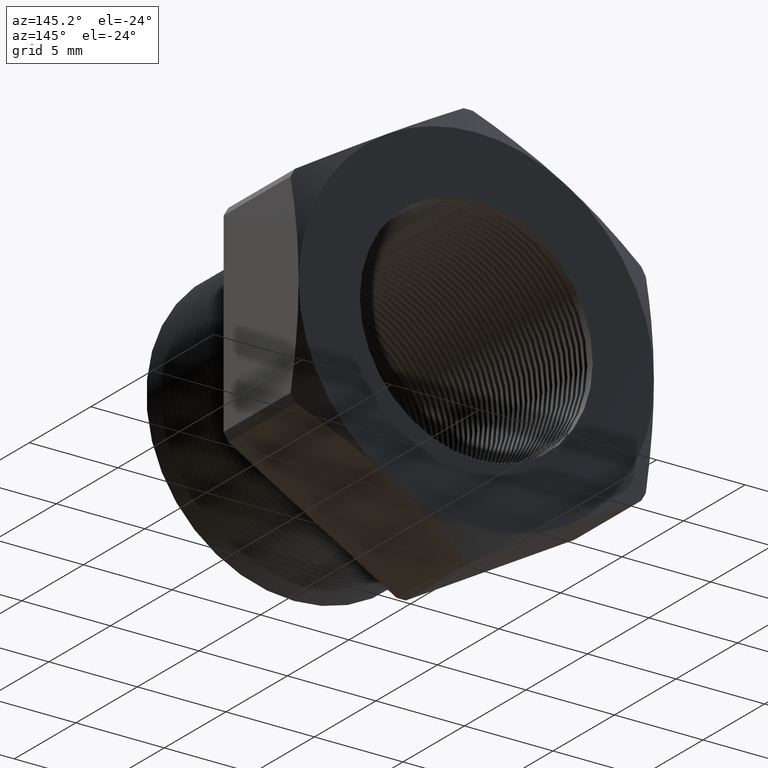
[diagram: clean part render]
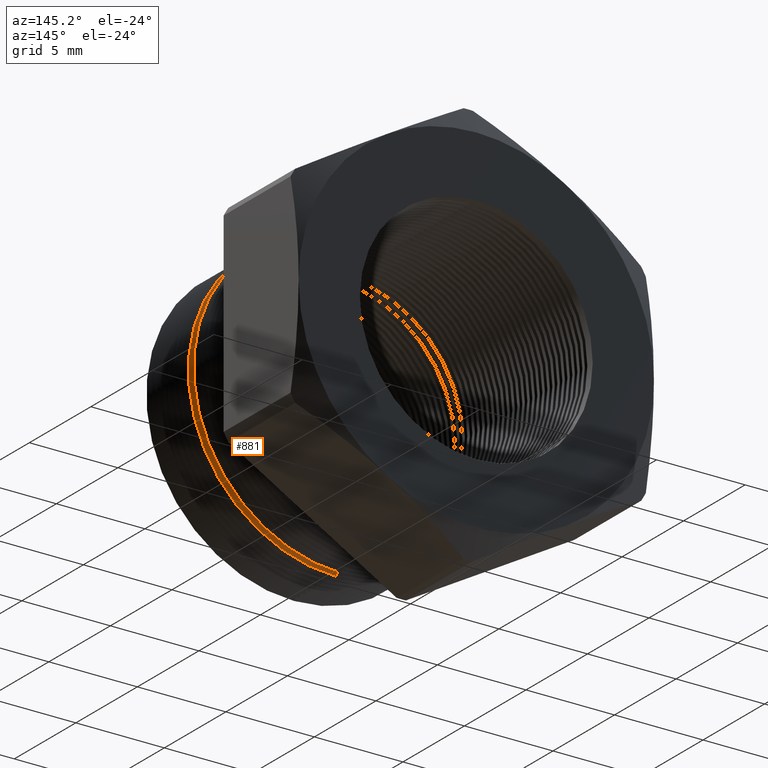
[diagram: same view with one face highlighted and labeled with its STEP entity id]
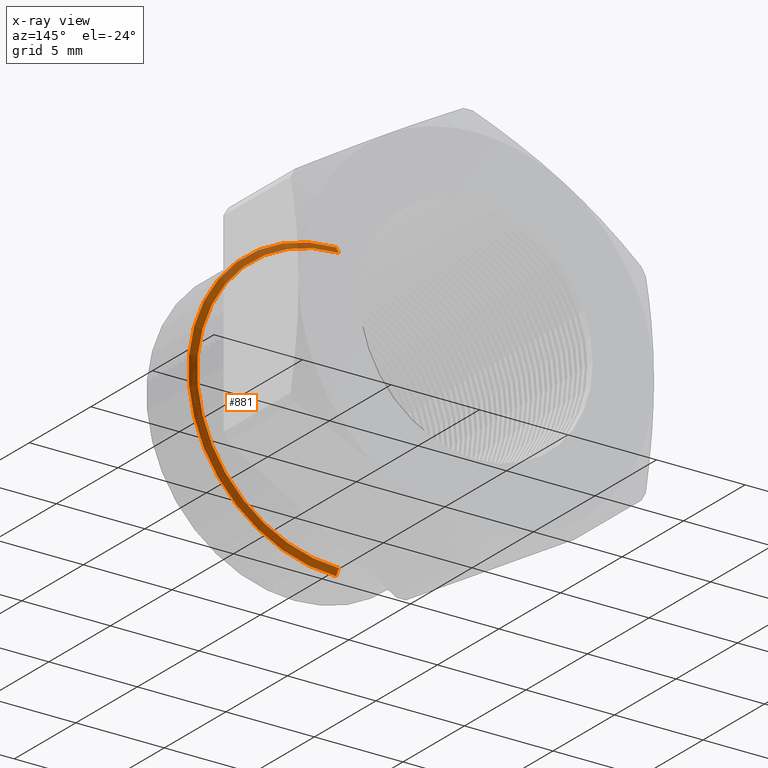
[diagram: x-ray of the same camera — body ghosted, the highlighted face saturated]
A machine part, auxiliary view. The second image highlights one B-rep face of the part: STEP entity #881.
The next image is the same camera in x-ray: the body ghosted, the highlighted face saturated — about 21% of this face is hidden behind the body in this view.
In plain terms, the highlighted conical surface has half-angle 60 deg.
Its self-contained STEP definition (entity closure, byte-faithful):
#799 = EDGE_LOOP ( 'NONE', ( #800, #804, #860, #861 ) ) ;
#800 = ORIENTED_EDGE ( 'NONE', *, *, #801, .T. ) ;
#801 = EDGE_CURVE ( 'NONE', #802, #803, #3259, .T. ) ;
#802 = VERTEX_POINT ( 'NONE', #3254 ) ;
#803 = VERTEX_POINT ( 'NONE', #3253 ) ;
#804 = ORIENTED_EDGE ( 'NONE', *, *, #805, .T. ) ;
#805 = EDGE_CURVE ( 'NONE', #803, #878, #3314, .T. ) ;
#818 = VERTEX_POINT ( 'NONE', #3288 ) ;
#860 = ORIENTED_EDGE ( 'NONE', *, *, #877, .T. ) ;
#861 = ORIENTED_EDGE ( 'NONE', *, *, #862, .F. ) ;
#862 = EDGE_CURVE ( 'NONE', #802, #818, #3385, .T. ) ;
#877 = EDGE_CURVE ( 'NONE', #878, #818, #3415, .T. ) ;
#878 = VERTEX_POINT ( 'NONE', #3410 ) ;
#881 = ADVANCED_FACE ( 'NONE', ( #3466 ), #3464, .T. ) ;
#3253 = CARTESIAN_POINT ( 'NONE',  ( 3.857637417314162700E-017, -0.03249275518999108400, 0.3150000000000000000 ) ) ;
#3254 = CARTESIAN_POINT ( 'NONE',  ( 0.0000000000000000000, -0.03249275518999108400, -0.3150000000000000000 ) ) ;
#3255 = DIRECTION ( 'NONE',  ( 0.0000000000000000000, 0.0000000000000000000, -1.000000000000000000 ) ) ;
#3256 = DIRECTION ( 'NONE',  ( 0.0000000000000000000, -1.000000000000000000, 0.0000000000000000000 ) ) ;
#3257 = CARTESIAN_POINT ( 'NONE',  ( 0.0000000000000000000, -0.03249275518999108400, 0.0000000000000000000 ) ) ;
#3258 = AXIS2_PLACEMENT_3D ( 'NONE', #3257, #3256, #3255 ) ;
#3259 = CIRCLE ( 'NONE', #3258, 0.3150000000000000000 ) ;
#3288 = CARTESIAN_POINT ( 'NONE',  ( 0.0000000000000000000, -0.04044510941705203200, -0.3287738815610546400 ) ) ;
#3311 = DIRECTION ( 'NONE',  ( 1.060575238724906300E-016, -0.5000000000000008900, 0.8660254037844380400 ) ) ;
#3312 = VECTOR ( 'NONE', #3311, 39.37007874015748100 ) ;
#3313 = CARTESIAN_POINT ( 'NONE',  ( 3.857637417314162700E-017, -0.03249275518999108400, 0.3150000000000000000 ) ) ;
#3314 = LINE ( 'NONE', #3313, #3312 ) ;
#3382 = DIRECTION ( 'NONE',  ( 0.0000000000000000000, -0.5000000000000008900, -0.8660254037844380400 ) ) ;
#3383 = VECTOR ( 'NONE', #3382, 39.37007874015748100 ) ;
#3384 = CARTESIAN_POINT ( 'NONE',  ( 0.0000000000000000000, -0.03249275518999108400, -0.3150000000000000000 ) ) ;
#3385 = LINE ( 'NONE', #3384, #3383 ) ;
#3410 = CARTESIAN_POINT ( 'NONE',  ( 4.026318816969966200E-017, -0.04044510941705203200, 0.3287738815610546400 ) ) ;
#3411 = DIRECTION ( 'NONE',  ( 0.0000000000000000000, 0.0000000000000000000, 1.000000000000000000 ) ) ;
#3412 = DIRECTION ( 'NONE',  ( -0.0000000000000000000, 1.000000000000000000, -0.0000000000000000000 ) ) ;
#3413 = CARTESIAN_POINT ( 'NONE',  ( 0.0000000000000000000, -0.04044510941705203200, 0.0000000000000000000 ) ) ;
#3414 = AXIS2_PLACEMENT_3D ( 'NONE', #3413, #3412, #3411 ) ;
#3415 = CIRCLE ( 'NONE', #3414, 0.3287738815610546400 ) ;
#3460 = DIRECTION ( 'NONE',  ( 0.0000000000000000000, 0.0000000000000000000, -1.000000000000000000 ) ) ;
#3461 = DIRECTION ( 'NONE',  ( 0.0000000000000000000, -1.000000000000000000, 0.0000000000000000000 ) ) ;
#3462 = CARTESIAN_POINT ( 'NONE',  ( 0.0000000000000000000, -0.03249275518999108400, 0.0000000000000000000 ) ) ;
#3463 = AXIS2_PLACEMENT_3D ( 'NONE', #3462, #3461, #3460 ) ;
#3464 = CONICAL_SURFACE ( 'NONE', #3463, 0.3150000000000000000, 1.047197551196596700 ) ;
#3466 = FACE_OUTER_BOUND ( 'NONE', #799, .T. ) ;